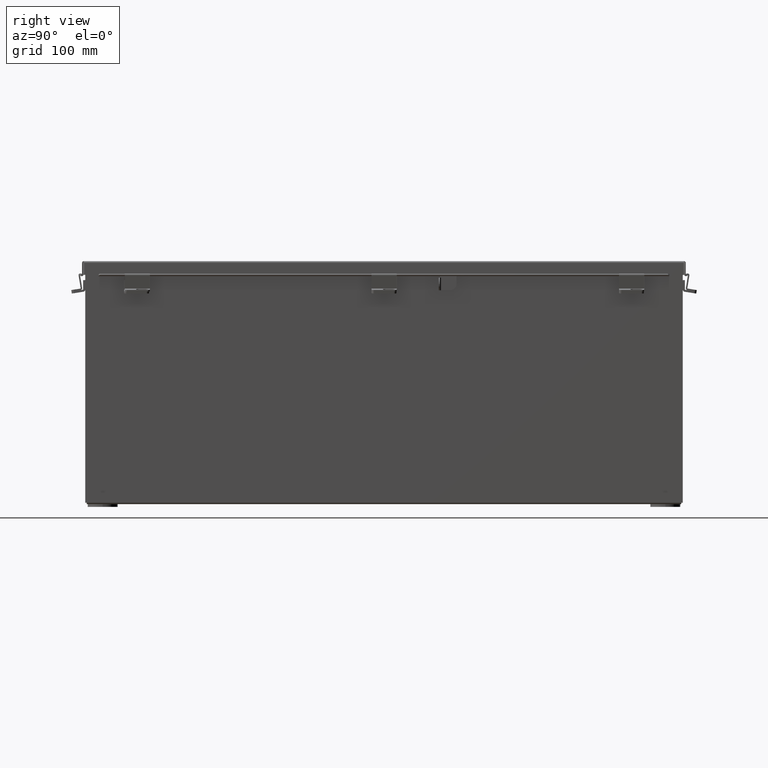
[diagram: clean part render]
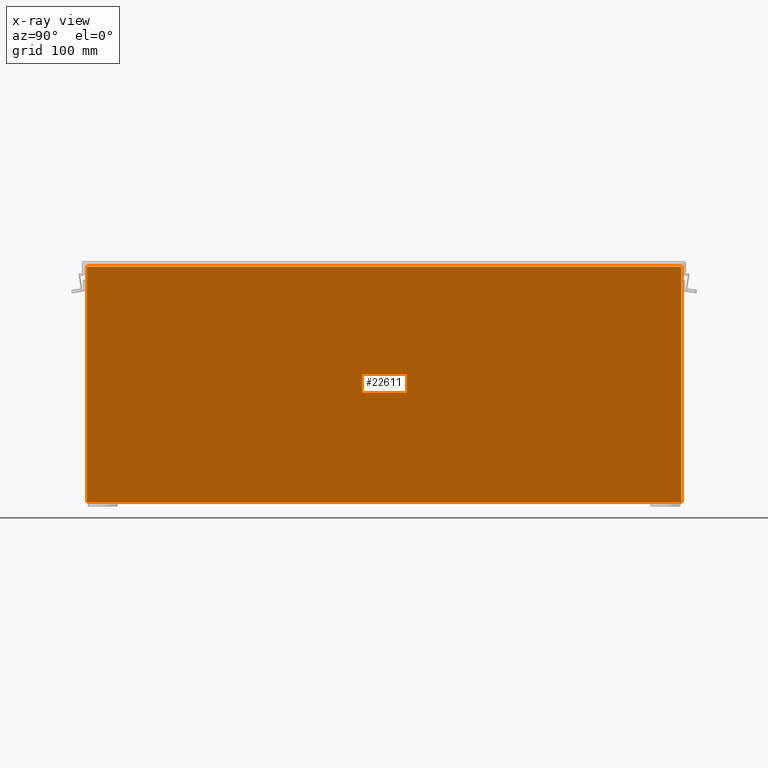
[diagram: x-ray — body ghosted, one internal face saturated and labeled with its STEP entity id]
A machine part, right view, then the same camera in x-ray: the body is ghosted and one INTERNAL B-rep face — a face not visible from any outside direction — is saturated and labeled: STEP entity #22611.
In plain terms, the highlighted planar face has unit normal (-1, 0, 0).
Its self-contained STEP definition (entity closure, byte-faithful):
#599 = DIRECTION ( 'NONE',  ( -3.503965158194252100E-015, -0.0000000000000000000, -1.000000000000000000 ) ) ;
#849 = VERTEX_POINT ( 'NONE', #3929 ) ;
#1902 = CARTESIAN_POINT ( 'NONE',  ( 5.925300000000002700, -14.92529999999999800, 0.01300000000000011600 ) ) ;
#1913 = CARTESIAN_POINT ( 'NONE',  ( 5.925300000000044400, 14.92529999999999600, 11.83759999999999800 ) ) ;
#2641 = CARTESIAN_POINT ( 'NONE',  ( 5.925300000000002700, -14.92529999999999800, 0.0000000000000000000 ) ) ;
#2857 = PLANE ( 'NONE',  #18850 ) ;
#3581 = ORIENTED_EDGE ( 'NONE', *, *, #20339, .F. ) ;
#3929 = CARTESIAN_POINT ( 'NONE',  ( 5.925300000000002700, -14.92529999999999800, 0.01299999999999956900 ) ) ;
#4338 = LINE ( 'NONE', #1902, #13792 ) ;
#4904 = CARTESIAN_POINT ( 'NONE',  ( 5.925300000000002700, 0.0000000000000000000, -2.102669252623462500E-014 ) ) ;
#5695 = DIRECTION ( 'NONE',  ( 3.503965158194252100E-015, -1.844192188523290500E-016, 1.000000000000000000 ) ) ;
#6522 = EDGE_CURVE ( 'NONE', #849, #7536, #4338, .T. ) ;
#6927 = DIRECTION ( 'NONE',  ( -1.000000000000000000, 0.0000000000000000000, 3.503965158194251300E-015 ) ) ;
#7194 = CARTESIAN_POINT ( 'NONE',  ( 5.925300000000044400, -14.92529999999999800, 11.83759999999999800 ) ) ;
#7536 = VERTEX_POINT ( 'NONE', #19683 ) ;
#9335 = EDGE_CURVE ( 'NONE', #16973, #849, #13732, .T. ) ;
#9882 = ORIENTED_EDGE ( 'NONE', *, *, #12483, .F. ) ;
#12483 = EDGE_CURVE ( 'NONE', #7536, #20193, #18399, .T. ) ;
#13732 = LINE ( 'NONE', #2641, #17878 ) ;
#13792 = VECTOR ( 'NONE', #26146, 39.37007874015748100 ) ;
#14002 = ORIENTED_EDGE ( 'NONE', *, *, #9335, .F. ) ;
#14391 = DIRECTION ( 'NONE',  ( -0.0000000000000000000, -1.000000000000000000, -0.0000000000000000000 ) ) ;
#15332 = VECTOR ( 'NONE', #14391, 39.37007874015748100 ) ;
#16973 = VERTEX_POINT ( 'NONE', #7194 ) ;
#17759 = VECTOR ( 'NONE', #5695, 39.37007874015748100 ) ;
#17878 = VECTOR ( 'NONE', #599, 39.37007874015748100 ) ;
#18399 = LINE ( 'NONE', #23873, #17759 ) ;
#18850 = AXIS2_PLACEMENT_3D ( 'NONE', #4904, #6927, #21116 ) ;
#19683 = CARTESIAN_POINT ( 'NONE',  ( 5.925300000000002700, 14.92529999999999800, 0.01299999999999956900 ) ) ;
#20193 = VERTEX_POINT ( 'NONE', #1913 ) ;
#20339 = EDGE_CURVE ( 'NONE', #20193, #16973, #26164, .T. ) ;
#21116 = DIRECTION ( 'NONE',  ( 3.503965158194251300E-015, 0.0000000000000000000, 1.000000000000000000 ) ) ;
#21526 = EDGE_LOOP ( 'NONE', ( #14002, #3581, #9882, #22394 ) ) ;
#22394 = ORIENTED_EDGE ( 'NONE', *, *, #6522, .F. ) ;
#22611 = ADVANCED_FACE ( 'NONE', ( #23227 ), #2857, .T. ) ;
#23227 = FACE_OUTER_BOUND ( 'NONE', #21526, .T. ) ;
#23873 = CARTESIAN_POINT ( 'NONE',  ( 5.925300000000044400, 14.92529999999999600, 11.85060000000000000 ) ) ;
#24632 = CARTESIAN_POINT ( 'NONE',  ( 5.925300000000044400, 14.92529999999999800, 11.83759999999999800 ) ) ;
#26146 = DIRECTION ( 'NONE',  ( -1.282694510298949100E-031, 1.000000000000000000, -3.660694248911933500E-017 ) ) ;
#26164 = LINE ( 'NONE', #24632, #15332 ) ;